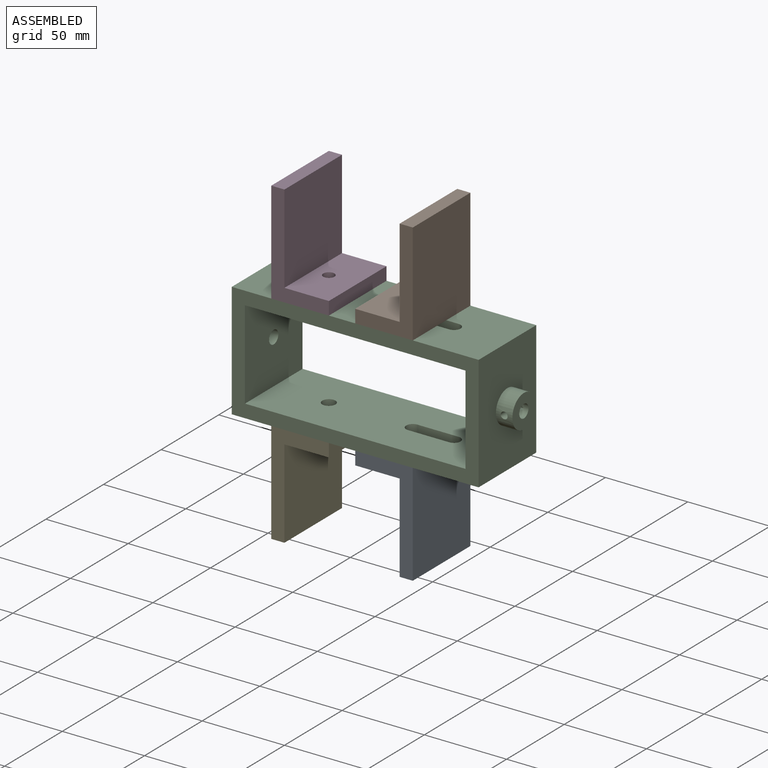
[diagram: assembled view]
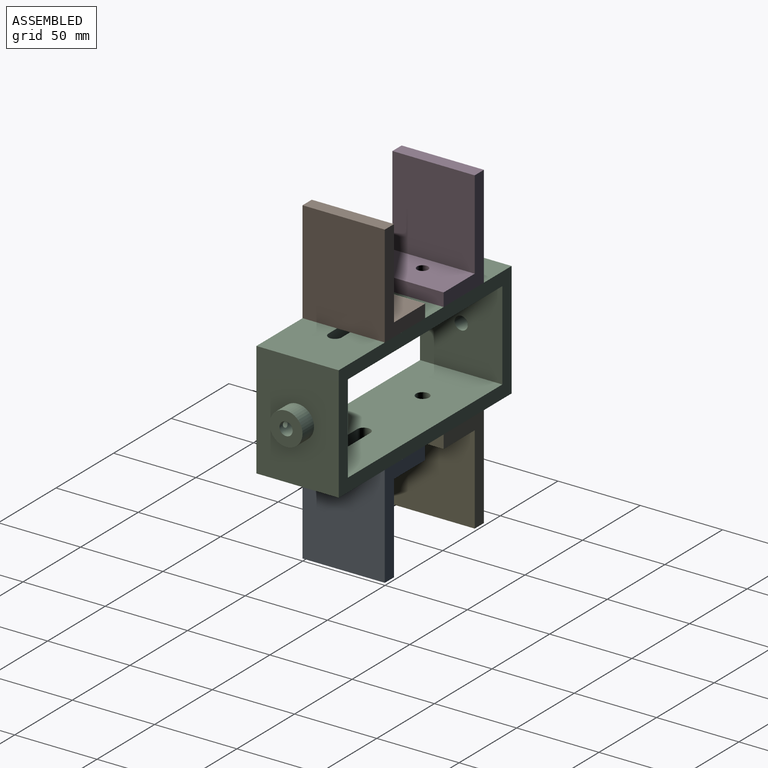
[diagram: assembled view, second angle]
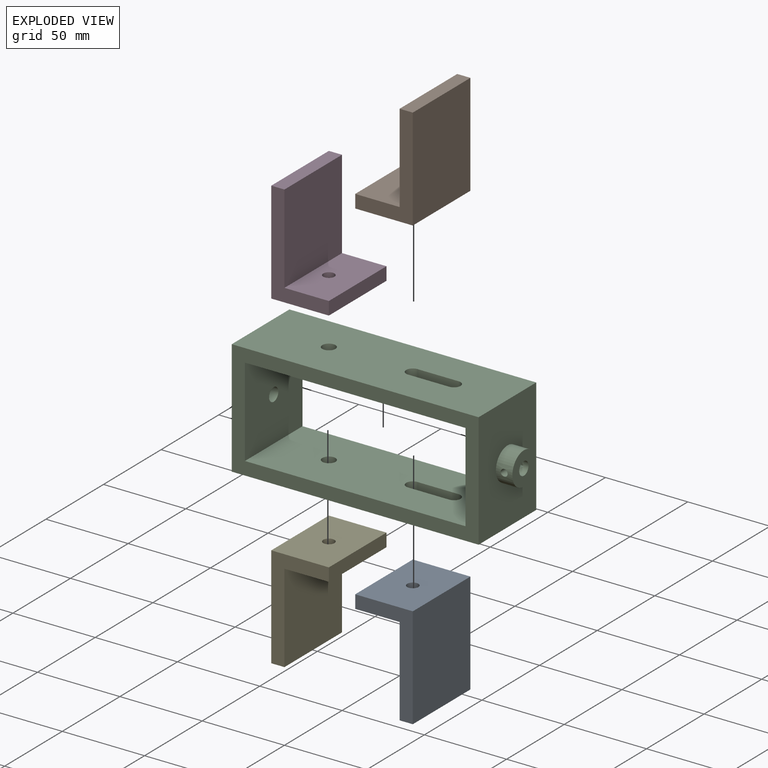
[diagram: exploded view]
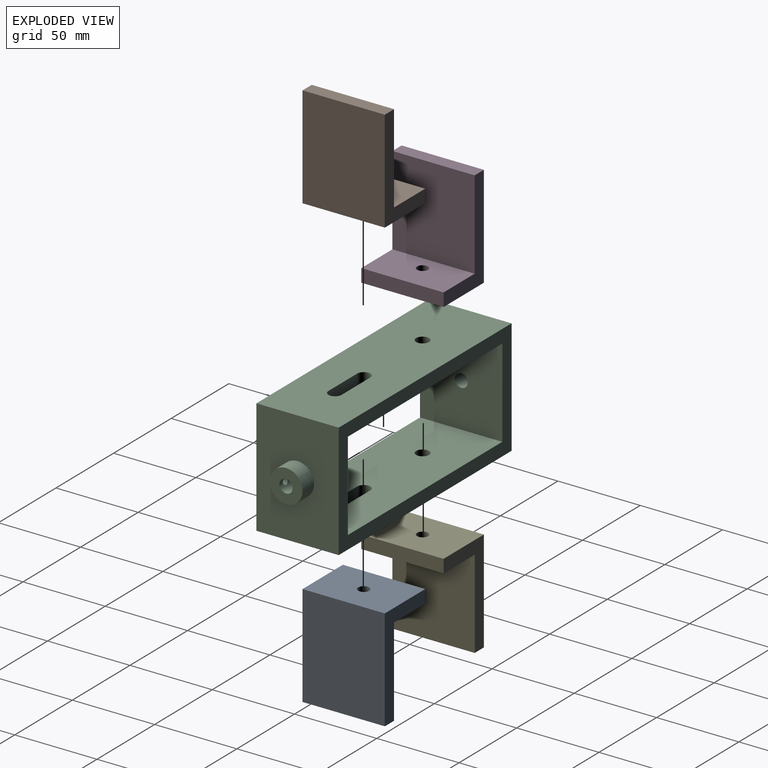
[diagram: exploded view, second angle]
ASSEMBLY  parts=5 mates=4
PART A: 9 faces, bbox 35x50x62 mm
  f0: plane 50x35mm, normal (0,0,-1), area 1713.7mm2, adj f1,f5,f6,f7,f8
  f1: plane 62x50mm, normal (1,0,0), area 3100mm2, adj f0,f2,f6,f7
  f2: plane 50x8mm, normal (0,0,1), area 400mm2, adj f1,f3,f6,f7
  f3: plane 54x50mm, normal (-1,0,0), area 2700mm2, adj f2,f4,f6,f7
  f4: plane 50x27mm, normal (0,0,1), area 1313.7mm2, adj f3,f5,f6,f7,f8
  f5: plane 50x8mm, normal (-1,0,0), area 400mm2, adj f0,f4,f6,f7
  f6: plane 62x35mm, normal (0,-1,0), area 712mm2, adj f0,f1,f2,f3,f4,f5
  f7: plane 62x35mm, normal (0,1,0), area 712mm2, adj f0,f1,f2,f3,f4,f5
  f8: cylinder r=3.4mm len=8mm, axis (0,0,-1), area 170.9mm2, adj f0,f4
PART B: same geometry as A
PART C: 32 faces, bbox 170x50x70 mm
  f0: cylinder r=10mm len=20mm, axis (1,0,0), area 614.4mm2, adj f12,f25,f31
  f1: cylinder r=4mm len=18mm, axis (-1,0,0), area 423.6mm2, adj f14,f25,f30,f31
  f2: cylinder r=10mm len=20mm, axis (-1,0,0), area 614.4mm2, adj f13,f24,f28
  f3: cylinder r=4mm len=18mm, axis (-1,0,0), area 423.7mm2, adj f15,f24,f27,f28
  f4: plane 150x50mm, normal (0,0,-1), area 7199.9mm2, adj f9,f11,f12,f13,f16,f17,f19,f22
  f5: plane 134x50mm, normal (0,0,1), area 6399.9mm2, adj f9,f11,f14,f15,f16,f17,f19,f22
  f6: plane 134x50mm, normal (0,0,-1), area 6399.9mm2, adj f8,f10,f14,f15,f16,f17,f18,f20
  f7: plane 150x50mm, normal (0,0,1), area 7199.9mm2, adj f8,f10,f12,f13,f16,f17,f18,f20
  f8: cylinder r=4mm len=8mm, axis (0,0,1), area 104.6mm2, adj f6,f7,f20,f21
  f9: cylinder r=4mm len=8mm, axis (0,0,1), area 104.6mm2, adj f4,f5,f22,f23
  f10: cylinder r=4mm len=8mm, axis (0,0,1), area 100.6mm2, adj f6,f7,f20,f21
  f11: cylinder r=4mm len=8mm, axis (0,0,1), area 100.6mm2, adj f4,f5,f22,f23
  f12: plane 70x50mm, normal (-1,0,0), area 3185.8mm2, adj f0,f4,f7,f16,f17
  f13: plane 70x50mm, normal (1,0,0), area 3185.8mm2, adj f2,f4,f7,f16,f17
  f14: plane 54x50mm, normal (1,0,0), area 2649.7mm2, adj f1,f5,f6,f16,f17
  f15: plane 54x50mm, normal (-1,0,0), area 2649.7mm2, adj f3,f5,f6,f16,f17
  f16: plane 150x70mm, normal (0,-1,0), area 3264mm2, adj f4,f5,f6,f7,f12,f13,f14,f15
  f17: plane 150x70mm, normal (0,1,0), area 3264mm2, adj f4,f5,f6,f7,f12,f13,f14,f15
  f18: cylinder r=4mm len=8mm, axis (0,0,1), area 201.1mm2, adj f6,f7
  f19: cylinder r=4mm len=8mm, axis (0,0,1), area 201.1mm2, adj f4,f5
  f20: plane 24.49x8mm, normal (0,-1,0), area 195.9mm2, adj f6,f7,f8,f10
  f21: plane 24.99x8mm, normal (0,1,0), area 200mm2, adj f6,f7,f8,f10
  f22: plane 24.49x8mm, normal (0,-1,0), area 195.9mm2, adj f4,f5,f9,f11
  f23: plane 24.99x8mm, normal (0,1,0), area 200mm2, adj f4,f5,f9,f11
  f24: plane 20x20mm, normal (1,0,0), area 263.9mm2, adj f2,f3
  f25: plane 20x20mm, normal (-1,0,0), area 263.9mm2, adj f0,f1
  f26: plane 4.2x4.2mm, normal (0,-1,0), area 13.9mm2, adj f27
  f27: cylinder r=2.1mm len=4.2mm, axis (0,1,0), area 30.2mm2, adj f3,f26
  f28: cylinder r=2.1mm len=6.6mm, axis (0,1,0), area 81.5mm2, adj f2,f3
  f29: plane 4.2x4.2mm, normal (0,-1,0), area 13.9mm2, adj f30
  f30: cylinder r=2.1mm len=4.2mm, axis (0,1,0), area 30.2mm2, adj f1,f29
  f31: cylinder r=2.1mm len=6.6mm, axis (0,1,0), area 81.6mm2, adj f0,f1
PART D: 9 faces, bbox 35x50x62 mm
  f0: plane 50x27mm, normal (0,0,1), area 1313.7mm2, adj f1,f5,f6,f7,f8
  f1: plane 54x50mm, normal (1,0,0), area 2700mm2, adj f0,f2,f6,f7
  f2: plane 50x8mm, normal (0,0,1), area 400mm2, adj f1,f3,f6,f7
  f3: plane 62x50mm, normal (-1,0,0), area 3100mm2, adj f2,f4,f6,f7
  f4: plane 50x35mm, normal (0,0,-1), area 1713.7mm2, adj f3,f5,f6,f7,f8
  f5: plane 50x8mm, normal (1,0,0), area 400mm2, adj f0,f4,f6,f7
  f6: plane 62x35mm, normal (0,-1,0), area 712mm2, adj f0,f1,f2,f3,f4,f5
  f7: plane 62x35mm, normal (0,1,0), area 712mm2, adj f0,f1,f2,f3,f4,f5
  f8: cylinder r=3.4mm len=8mm, axis (0,0,-1), area 170.9mm2, adj f0,f4
PART E: same geometry as D
PLACE A rot(axis=(1,0,0),180deg) t=(15.81,-50,-53.57)mm
PLACE B t=(15.81,0,30.23)mm
PLACE C at identity
PLACE D t=(-26.67,0,30.23)mm
PLACE E rot(axis=(1,0,0),180deg) t=(-26.67,-50,-53.57)mm
MATE fastened A.f8 <-> C.f8  axis (0,0,1) through (25.5,-25,-46.67)mm
MATE fastened D.f8 <-> C.f18  axis (0,0,-1) through (-25.5,-25,23.33)mm
MATE fastened E.f8 <-> C.f18  axis (0,0,1) through (-25.5,-25,-46.67)mm
MATE fastened B.f8 <-> C.f8  axis (0,0,-1) through (25.5,-25,23.33)mm
